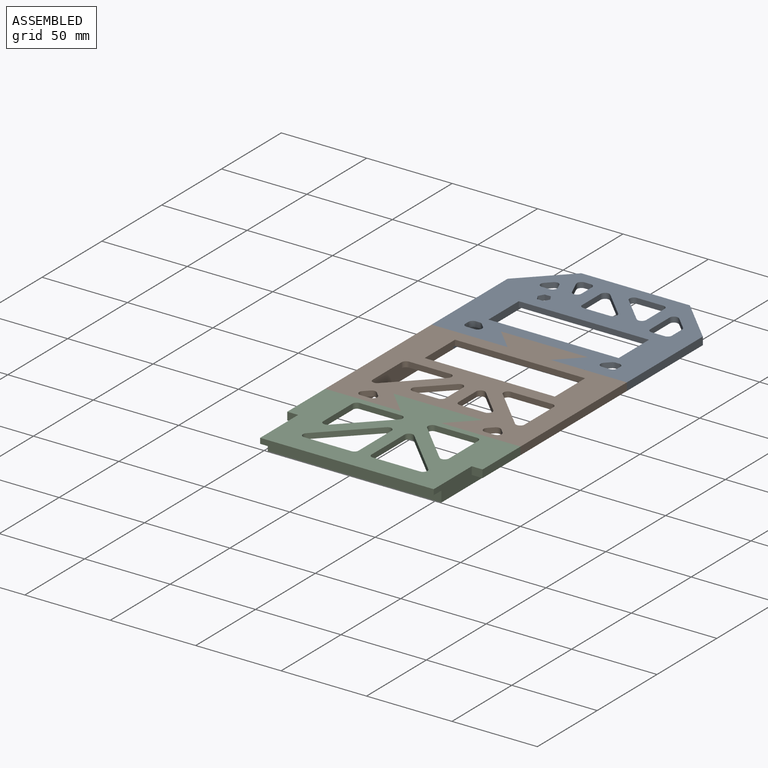
[diagram: assembled view]
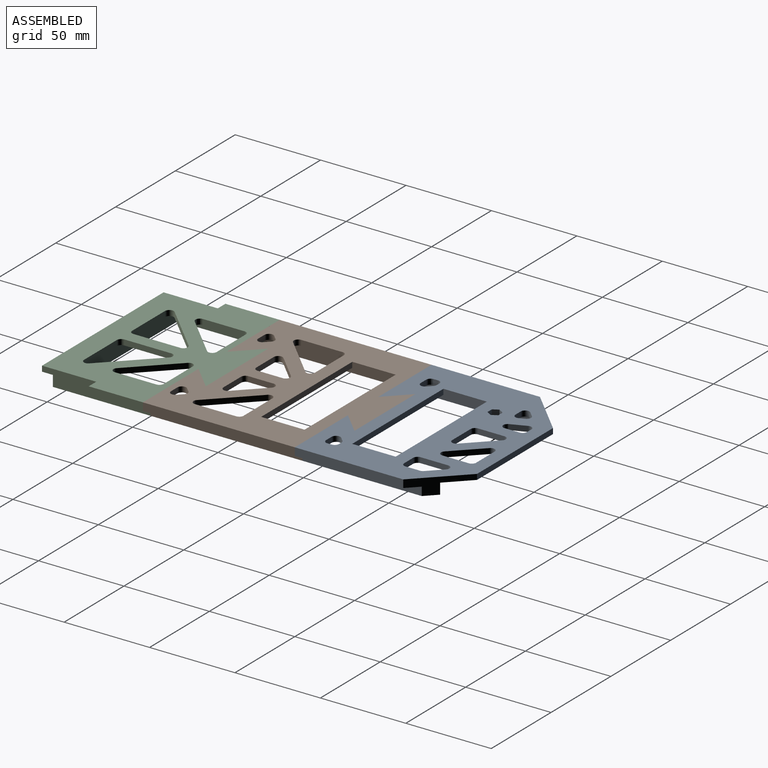
[diagram: assembled view, second angle]
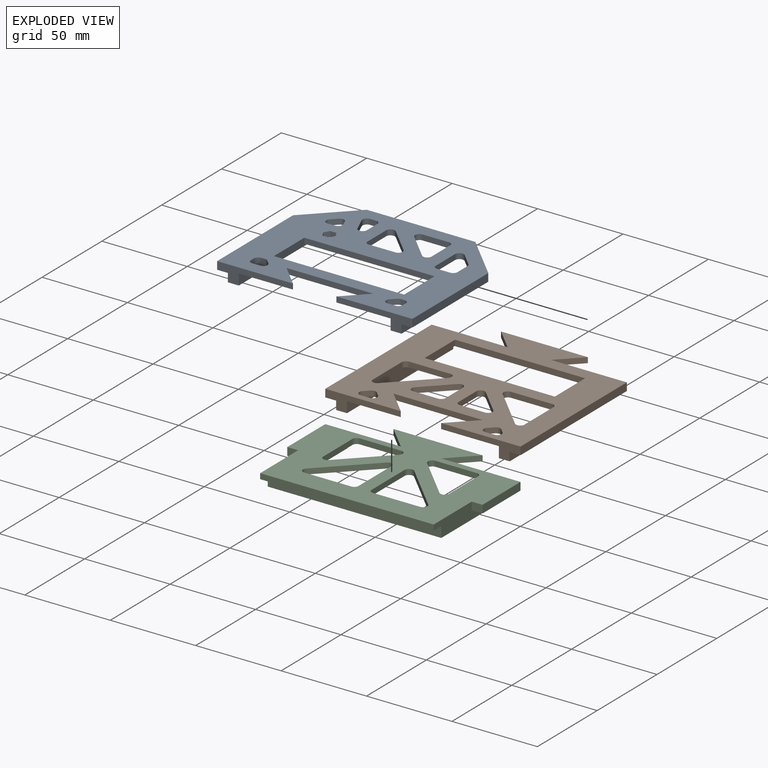
[diagram: exploded view]
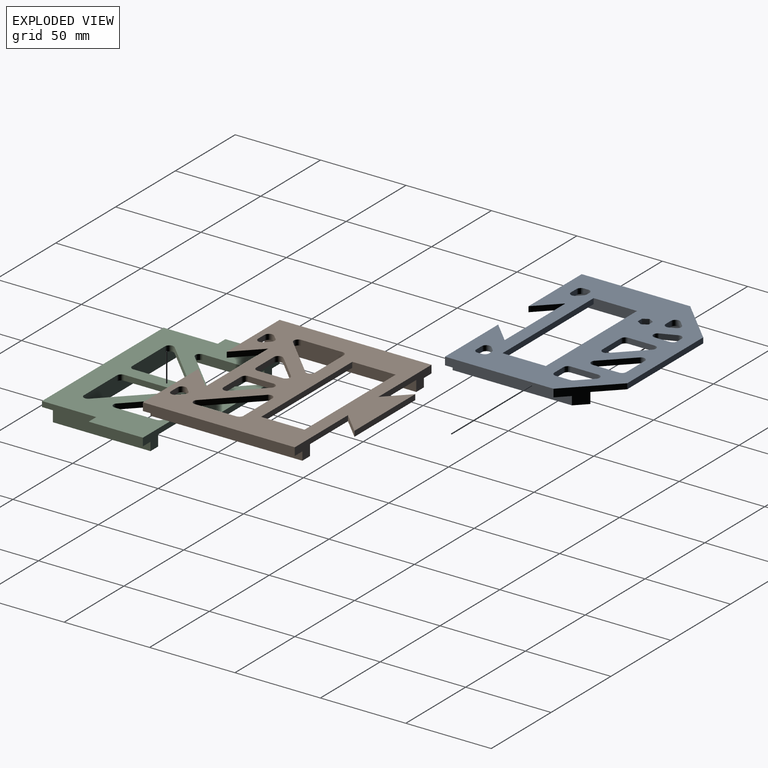
[diagram: exploded view, second angle]
ASSEMBLY  parts=3 mates=5
PART A: 75 faces, bbox 114.3x88.9x9.5 mm
  f0: plane 114.3x88.9mm, normal (0,0,1), area 6016.6mm2, adj f2,f5,f6,f10,f12,f13,f14,f15
  f1: plane 88.9x88.9mm, normal (0,0,-1), area 4242.4mm2, adj f5,f6,f12,f13,f14,f15,f16,f17
  f2: plane 63.5x4.57mm, normal (1,0,0), area 290.3mm2, adj f0,f9,f15,f18
  f3: plane 69.85x4.95mm, normal (-1,0,0), area 346mm2, adj f8,f11,f16,f19
  f4: plane 69.85x4.95mm, normal (1,0,0), area 346mm2, adj f7,f9,f15,f18
  f5: plane 76.2x9.53mm, normal (1,0,0), area 491.9mm2, adj f0,f1,f8,f16,f19,f71,f74
  f6: plane 76.2x9.53mm, normal (-1,0,0), area 518.9mm2, adj f0,f1,f7,f15,f18,f64,f65,f68
  f7: plane 76.2x6.35mm, normal (0,0,-1), area 463.7mm2, adj f4,f6,f15,f18
  f8: plane 76.2x6.35mm, normal (0,0,-1), area 463.7mm2, adj f3,f5,f16,f19
  f9: plane 69.85x6.35mm, normal (0,0,-1), area 423.4mm2, adj f2,f4,f15,f18
  f10: plane 63.5x4.57mm, normal (-1,0,0), area 290.3mm2, adj f0,f11,f16,f19
  f11: plane 69.85x6.35mm, normal (0,0,-1), area 423.4mm2, adj f3,f10,f16,f19
  f12: plane 12.7x12.7mm, normal (-0.71,0.71,0), area 57mm2, adj f0,f1,f13,f15
  f13: plane 50.8x3.18mm, normal (0,-1,0), area 161.3mm2, adj f0,f1,f12,f14
  f14: plane 12.7x12.7mm, normal (0.71,0.71,0), area 57mm2, adj f0,f1,f13,f16
  f15: plane 44.45x9.53mm, normal (0,-1,0), area 190.3mm2, adj f0,f1,f2,f4,f6,f7,f9,f12
  f16: plane 44.45x9.53mm, normal (0,-1,0), area 190.3mm2, adj f0,f1,f3,f5,f8,f10,f11,f14
  f17: plane 63.5x3.18mm, normal (0,1,0), area 201.6mm2, adj f0,f1,f18,f19
  f18: plane 25.4x25.4mm, normal (0.71,0.71,0), area 183.6mm2, adj f0,f1,f2,f4,f6,f7,f9,f17
  f19: plane 25.4x25.4mm, normal (-0.71,0.71,0), area 183.6mm2, adj f0,f1,f3,f5,f8,f10,f11,f17
  f20: plane 4.68x3.18mm, normal (0,1,0), area 14.9mm2, adj f0,f1,f73,f74
  f21: plane 3.18x2.54mm, normal (-0.71,-0.71,0), area 11.4mm2, adj f0,f1,f72,f73
  f22: plane 3.18x2.14mm, normal (0,-1,0), area 6.8mm2, adj f0,f1,f71,f72
  f23: plane 8.82x3.65mm, normal (0.92,0.38,0), area 30.3mm2, adj f0,f1,f54,f56
  f24: plane 8.82x3.18mm, normal (-1,0,0), area 28mm2, adj f0,f1,f55,f56
  f25: plane 3.65x3.18mm, normal (0,-1,0), area 11.6mm2, adj f0,f1,f54,f55
  f26: plane 3.18x3.14mm, normal (-0.92,-0.38,0), area 10.8mm2, adj f0,f1,f52,f53
  f27: plane 4.45x3.18mm, normal (0,1,0), area 14.1mm2, adj f0,f1,f51,f53
  f28: plane 3.18x3.14mm, normal (0.71,-0.71,0), area 14.1mm2, adj f0,f1,f51,f52
  f29: plane 3.67x3.18mm, normal (0,-1,0), area 11.6mm2, adj f0,f1,f30,f34
  f30: plane 3.18x3.18mm, normal (0.87,-0.5,0), area 11.6mm2, adj f0,f1,f29,f31
  f31: plane 3.18x3.18mm, normal (0.87,0.5,0), area 11.6mm2, adj f0,f1,f30,f32
  f32: plane 3.67x3.18mm, normal (0,1,0), area 11.6mm2, adj f0,f1,f31,f33
  f33: plane 3.18x3.18mm, normal (-0.87,0.5,0), area 11.6mm2, adj f0,f1,f32,f34
  f34: plane 3.18x3.18mm, normal (-0.87,-0.5,0), area 11.6mm2, adj f0,f1,f29,f33
  f35: plane 76.2x3.18mm, normal (0,-1,0), area 241.9mm2, adj f0,f1,f36,f38
  f36: plane 25.4x3.18mm, normal (1,0,0), area 80.6mm2, adj f0,f1,f35,f37
  f37: plane 76.2x3.18mm, normal (0,1,0), area 241.9mm2, adj f0,f1,f36,f38
  f38: plane 25.4x3.18mm, normal (-1,0,0), area 80.6mm2, adj f0,f1,f35,f37
  f39: plane 15.46x15.46mm, normal (0.71,0.71,0), area 69.4mm2, adj f0,f1,f60,f62
  f40: plane 15.46x3.18mm, normal (-1,0,0), area 49.1mm2, adj f0,f1,f61,f62
  f41: plane 15.46x3.18mm, normal (0,-1,0), area 49.1mm2, adj f0,f1,f60,f61
  f42: plane 15.46x3.18mm, normal (0,1,0), area 49.1mm2, adj f0,f1,f57,f59
  f43: plane 15.46x15.46mm, normal (-0.71,-0.71,0), area 69.4mm2, adj f0,f1,f58,f59
  f44: plane 15.46x3.18mm, normal (1,0,0), area 49.1mm2, adj f0,f1,f57,f58
  f45: plane 16.11x3.18mm, normal (1,0,0), area 51.2mm2, adj f0,f1,f63,f66
  f46: plane 7.62x3.18mm, normal (0,1,0), area 24.2mm2, adj f0,f1,f65,f66
  f47: plane 7.62x7.62mm, normal (-0.71,-0.71,0), area 34.2mm2, adj f0,f1,f63,f64
  f48: plane 3.18x2.54mm, normal (0.71,-0.71,0), area 11.4mm2, adj f0,f1,f67,f70
  f49: plane 4.68x3.18mm, normal (0,1,0), area 14.9mm2, adj f0,f1,f67,f68
  f50: plane 3.18x2.14mm, normal (0,-1,0), area 6.8mm2, adj f0,f1,f69,f70
  f51: cylinder r=2.54mm len=4.34mm, axis (0,0,-1), area 19mm2, adj f0,f1,f27,f28
  f52: cylinder r=2.54mm len=4.14mm, axis (0,0,-1), area 15.8mm2, adj f0,f1,f26,f28
  f53: cylinder r=2.54mm len=3.51mm, axis (0,0,-1), area 15.8mm2, adj f0,f1,f26,f27
  f54: cylinder r=2.54mm len=3.51mm, axis (0,0,-1), area 15.8mm2, adj f0,f1,f23,f25
  f55: cylinder r=2.54mm len=3.18mm, axis (0,0,-1), area 12.7mm2, adj f0,f1,f24,f25
  f56: cylinder r=2.54mm len=4.89mm, axis (0,0,-1), area 22.2mm2, adj f0,f1,f23,f24
  f57: cylinder r=2.54mm len=3.18mm, axis (0,0,-1), area 12.7mm2, adj f0,f1,f42,f44
  f58: cylinder r=2.54mm len=4.34mm, axis (0,0,-1), area 19mm2, adj f0,f1,f43,f44
  f59: cylinder r=2.54mm len=4.34mm, axis (0,0,-1), area 19mm2, adj f0,f1,f42,f43
  f60: cylinder r=2.54mm len=4.34mm, axis (0,0,-1), area 19mm2, adj f0,f1,f39,f41
  f61: cylinder r=2.54mm len=3.18mm, axis (0,0,-1), area 12.7mm2, adj f0,f1,f40,f41
  f62: cylinder r=2.54mm len=4.34mm, axis (0,0,-1), area 19mm2, adj f0,f1,f39,f40
  f63: cylinder r=2.54mm len=4.34mm, axis (0,0,-1), area 19mm2, adj f0,f1,f45,f47
  f64: cylinder r=2.54mm len=3.18mm, axis (0,0,-1), area 6.3mm2, adj f0,f1,f6,f47
  f65: cylinder r=2.54mm len=3.18mm, axis (0,0,-1), area 12.7mm2, adj f0,f1,f6,f46
  f66: cylinder r=2.54mm len=3.18mm, axis (0,0,-1), area 12.7mm2, adj f0,f1,f45,f46
  f67: cylinder r=2.54mm len=4.34mm, axis (0,0,-1), area 19mm2, adj f0,f1,f48,f49
  f68: cylinder r=2.54mm len=3.18mm, axis (0,0,-1), area 12.7mm2, adj f0,f1,f6,f49
  f69: cylinder r=2.54mm len=3.18mm, axis (0,0,-1), area 12.7mm2, adj f0,f1,f6,f50
  f70: cylinder r=2.54mm len=3.18mm, axis (0,0,-1), area 6.3mm2, adj f0,f1,f48,f50
  f71: cylinder r=2.54mm len=3.18mm, axis (0,0,1), area 12.7mm2, adj f0,f1,f5,f22
  f72: cylinder r=2.54mm len=3.18mm, axis (0,0,-1), area 6.3mm2, adj f0,f1,f21,f22
  f73: cylinder r=2.54mm len=4.34mm, axis (0,0,-1), area 19mm2, adj f0,f1,f20,f21
  f74: cylinder r=2.54mm len=3.18mm, axis (0,0,1), area 12.7mm2, adj f0,f1,f5,f20
PART B: 60 faces, bbox 114.3x101.6x9.5 mm
  f0: plane 88.9x6.35mm, normal (0,0,-1), area 564.5mm2, adj f4,f7,f15,f20
  f1: plane 114.3x101.6mm, normal (0,0,1), area 6489.4mm2, adj f3,f4,f5,f9,f12,f13,f14,f15
  f2: plane 101.6x88.9mm, normal (0,0,-1), area 4231.3mm2, adj f3,f4,f12,f13,f14,f15,f16,f17
  f3: plane 88.9x9.53mm, normal (1,0,0), area 641.3mm2, adj f1,f2,f8,f16,f21,f57,f58
  f4: plane 88.9x9.53mm, normal (-1,0,0), area 641.3mm2, adj f0,f1,f2,f15,f20,f45,f47
  f5: plane 88.9x4.57mm, normal (-1,0,0), area 406.5mm2, adj f1,f11,f16,f21
  f6: plane 88.9x4.95mm, normal (-1,0,0), area 440.3mm2, adj f8,f11,f16,f21
  f7: plane 88.9x4.95mm, normal (1,0,0), area 440.3mm2, adj f0,f10,f15,f20
  f8: plane 88.9x6.35mm, normal (0,0,-1), area 564.5mm2, adj f3,f6,f16,f21
  f9: plane 88.9x4.57mm, normal (1,0,0), area 406.5mm2, adj f1,f10,f15,f20
  f10: plane 88.9x6.35mm, normal (0,0,-1), area 564.5mm2, adj f7,f9,f15,f20
  f11: plane 88.9x6.35mm, normal (0,0,-1), area 564.5mm2, adj f5,f6,f16,f21
  f12: plane 12.7x12.7mm, normal (-0.71,-0.71,0), area 57mm2, adj f1,f2,f13,f16
  f13: plane 50.8x3.18mm, normal (0,1,0), area 161.3mm2, adj f1,f2,f12,f14
  f14: plane 12.7x12.7mm, normal (0.71,-0.71,0), area 57mm2, adj f1,f2,f13,f15
  f15: plane 44.45x9.53mm, normal (0,1,0), area 190.3mm2, adj f0,f1,f2,f4,f7,f9,f10,f14
  f16: plane 44.45x9.53mm, normal (0,1,0), area 190.3mm2, adj f1,f2,f3,f5,f6,f8,f11,f12
  f17: plane 14.25x14.25mm, normal (-0.71,0.71,0), area 64mm2, adj f1,f2,f18,f20
  f18: plane 52.17x3.18mm, normal (0,-1,0), area 165.6mm2, adj f1,f2,f17,f19
  f19: plane 14.25x14.25mm, normal (0.71,0.71,0), area 64mm2, adj f1,f2,f18,f21
  f20: plane 46.45x9.53mm, normal (0,-1,0), area 196.7mm2, adj f0,f1,f2,f4,f7,f9,f10,f17
  f21: plane 44.19x9.53mm, normal (0,-1,0), area 189.5mm2, adj f1,f2,f3,f5,f6,f8,f11,f19
  f22: plane 3.18x2.73mm, normal (-0.71,-0.71,0), area 12.3mm2, adj f1,f2,f54,f55
  f23: plane 3.18x2.73mm, normal (0.71,-0.71,0), area 12.3mm2, adj f1,f2,f54,f56
  f24: plane 5.47x3.18mm, normal (0,1,0), area 17.4mm2, adj f1,f2,f55,f56
  f25: plane 3.18x2.73mm, normal (0.71,-0.71,0), area 12.3mm2, adj f1,f2,f42,f43
  f26: plane 5.47x3.18mm, normal (0,1,0), area 17.4mm2, adj f1,f2,f42,f44
  f27: plane 3.18x2.73mm, normal (-0.71,-0.71,0), area 12.3mm2, adj f1,f2,f43,f44
  f28: plane 14.73x3.18mm, normal (0,1,0), area 46.8mm2, adj f1,f2,f48,f50
  f29: plane 14.73x14.73mm, normal (-0.71,-0.71,0), area 66.1mm2, adj f1,f2,f49,f50
  f30: plane 14.73x3.18mm, normal (1,0,0), area 46.8mm2, adj f1,f2,f48,f49
  f31: plane 14.73x14.73mm, normal (0.71,-0.71,0), area 66.1mm2, adj f1,f2,f51,f53
  f32: plane 14.73x3.18mm, normal (0,1,0), area 46.8mm2, adj f1,f2,f52,f53
  f33: plane 14.73x3.18mm, normal (-1,0,0), area 46.8mm2, adj f1,f2,f51,f52
  f34: plane 24.17x3.18mm, normal (0,-1,0), area 76.8mm2, adj f1,f2,f57,f59
  f35: plane 24.17x24.17mm, normal (-0.71,0.71,0), area 108.5mm2, adj f1,f2,f58,f59
  f36: plane 24.17x3.18mm, normal (0,-1,0), area 76.8mm2, adj f1,f2,f46,f47
  f37: plane 24.17x24.17mm, normal (0.71,0.71,0), area 108.5mm2, adj f1,f2,f45,f46
  f38: plane 25.4x3.18mm, normal (-1,0,0), area 80.6mm2, adj f1,f2,f39,f41
  f39: plane 76.2x3.18mm, normal (0,-1,0), area 241.9mm2, adj f1,f2,f38,f40
  f40: plane 25.4x3.18mm, normal (1,0,0), area 80.6mm2, adj f1,f2,f39,f41
  f41: plane 76.2x3.18mm, normal (0,1,0), area 241.9mm2, adj f1,f2,f38,f40
  f42: cylinder r=2.54mm len=4.34mm, axis (0,0,-1), area 19mm2, adj f1,f2,f25,f26
  f43: cylinder r=2.54mm len=3.59mm, axis (0,0,-1), area 12.7mm2, adj f1,f2,f25,f27
  f44: cylinder r=2.54mm len=4.34mm, axis (0,0,-1), area 19mm2, adj f1,f2,f26,f27
  f45: cylinder r=2.54mm len=4.34mm, axis (0,0,1), area 19mm2, adj f1,f2,f4,f37
  f46: cylinder r=2.54mm len=4.34mm, axis (0,0,-1), area 19mm2, adj f1,f2,f36,f37
  f47: cylinder r=2.54mm len=3.18mm, axis (0,0,1), area 12.7mm2, adj f1,f2,f4,f36
  f48: cylinder r=2.54mm len=3.18mm, axis (0,0,-1), area 12.7mm2, adj f1,f2,f28,f30
  f49: cylinder r=2.54mm len=4.34mm, axis (0,0,-1), area 19mm2, adj f1,f2,f29,f30
  f50: cylinder r=2.54mm len=4.34mm, axis (0,0,-1), area 19mm2, adj f1,f2,f28,f29
  f51: cylinder r=2.54mm len=4.34mm, axis (0,0,-1), area 19mm2, adj f1,f2,f31,f33
  f52: cylinder r=2.54mm len=3.18mm, axis (0,0,-1), area 12.7mm2, adj f1,f2,f32,f33
  f53: cylinder r=2.54mm len=4.34mm, axis (0,0,-1), area 19mm2, adj f1,f2,f31,f32
  f54: cylinder r=2.54mm len=3.59mm, axis (0,0,-1), area 12.7mm2, adj f1,f2,f22,f23
  f55: cylinder r=2.54mm len=4.34mm, axis (0,0,-1), area 19mm2, adj f1,f2,f22,f24
  f56: cylinder r=2.54mm len=4.34mm, axis (0,0,-1), area 19mm2, adj f1,f2,f23,f24
  f57: cylinder r=2.54mm len=3.18mm, axis (0,0,-1), area 12.7mm2, adj f1,f2,f3,f34
  f58: cylinder r=2.54mm len=4.34mm, axis (0,0,-1), area 19mm2, adj f1,f2,f3,f35
  f59: cylinder r=2.54mm len=4.34mm, axis (0,0,-1), area 19mm2, adj f1,f2,f34,f35
PART C: 44 faces, bbox 114.3x77.8x9.5 mm
  f0: plane 88.9x65.05mm, normal (0,0,-1), area 2724.2mm2, adj f3,f10,f11,f17,f18,f19,f20,f21
  f1: plane 114.3x77.75mm, normal (0,0,1), area 5062.9mm2, adj f2,f6,f8,f11,f12,f13,f14,f15
  f2: plane 63.5x9.53mm, normal (1,0,0), area 419.4mm2, adj f1,f4,f5,f7,f8,f9,f12,f20
  f3: plane 50.8x6.35mm, normal (-1,0,0), area 322.6mm2, adj f0,f4,f11,f20
  f4: plane 101.6x57.15mm, normal (0,0,-1), area 1290.3mm2, adj f2,f3,f6,f9,f10,f11,f20,f21
  f5: plane 31.75x6.35mm, normal (0,0,-1), area 201.6mm2, adj f2,f12,f13,f20
  f6: plane 63.5x9.53mm, normal (-1,0,0), area 419.4mm2, adj f1,f4,f7,f8,f9,f15,f16,f21
  f7: plane 101.6x6.35mm, normal (0,0,-1), area 645.2mm2, adj f2,f6,f8,f9
  f8: plane 101.6x3.18mm, normal (0,-1,0), area 322.6mm2, adj f1,f2,f6,f7
  f9: plane 101.6x6.35mm, normal (0,-1,0), area 645.2mm2, adj f2,f4,f6,f7
  f10: plane 50.8x6.35mm, normal (1,0,0), area 322.6mm2, adj f0,f4,f11,f21
  f11: plane 88.9x9.53mm, normal (0,1,0), area 739.4mm2, adj f0,f1,f3,f4,f10,f35,f37,f39
  f12: plane 6.35x4.57mm, normal (0,-1,0), area 29mm2, adj f1,f2,f5,f13
  f13: plane 31.75x4.57mm, normal (1,0,0), area 145.2mm2, adj f1,f5,f12,f20
  f14: plane 31.75x4.57mm, normal (-1,0,0), area 145.2mm2, adj f1,f15,f16,f21
  f15: plane 6.35x4.57mm, normal (0,-1,0), area 29mm2, adj f1,f6,f14,f16
  f16: plane 31.75x6.35mm, normal (0,0,-1), area 201.6mm2, adj f6,f14,f15,f21
  f17: plane 14.25x14.25mm, normal (-0.71,-0.71,0), area 64mm2, adj f0,f1,f18,f21
  f18: plane 52.17x3.18mm, normal (0,1,0), area 165.6mm2, adj f0,f1,f17,f19
  f19: plane 14.25x14.25mm, normal (0.71,-0.71,0), area 64mm2, adj f0,f1,f18,f20
  f20: plane 46.45x9.53mm, normal (0,1,0), area 196.7mm2, adj f0,f1,f2,f3,f4,f5,f13,f19
  f21: plane 44.19x9.53mm, normal (0,1,0), area 189.5mm2, adj f0,f1,f4,f6,f10,f14,f16,f17
  f22: plane 24.35x3.18mm, normal (-1,0,0), area 77.3mm2, adj f0,f1,f41,f43
  f23: plane 24.35x3.18mm, normal (0,-1,0), area 77.3mm2, adj f0,f1,f42,f43
  f24: plane 24.35x24.35mm, normal (0.71,0.71,0), area 109.3mm2, adj f0,f1,f41,f42
  f25: plane 24.35x3.18mm, normal (0,-1,0), area 77.3mm2, adj f0,f1,f32,f34
  f26: plane 24.35x3.18mm, normal (1,0,0), area 77.3mm2, adj f0,f1,f33,f34
  f27: plane 24.35x24.35mm, normal (-0.71,0.71,0), area 109.3mm2, adj f0,f1,f32,f33
  f28: plane 27.54x3.18mm, normal (-1,0,0), area 87.4mm2, adj f0,f1,f36,f37
  f29: plane 27.54x27.54mm, normal (0.71,-0.71,0), area 123.7mm2, adj f0,f1,f35,f36
  f30: plane 27.54x27.54mm, normal (-0.71,-0.71,0), area 123.7mm2, adj f0,f1,f38,f40
  f31: plane 27.54x3.18mm, normal (1,0,0), area 87.4mm2, adj f0,f1,f38,f39
  f32: cylinder r=2.54mm len=4.34mm, axis (0,0,-1), area 19mm2, adj f0,f1,f25,f27
  f33: cylinder r=2.54mm len=4.34mm, axis (0,0,-1), area 19mm2, adj f0,f1,f26,f27
  f34: cylinder r=2.54mm len=3.18mm, axis (0,0,-1), area 12.7mm2, adj f0,f1,f25,f26
  f35: cylinder r=2.54mm len=4.34mm, axis (0,0,-1), area 19mm2, adj f0,f1,f11,f29
  f36: cylinder r=2.54mm len=4.34mm, axis (0,0,-1), area 19mm2, adj f0,f1,f28,f29
  f37: cylinder r=2.54mm len=3.18mm, axis (0,0,-1), area 12.7mm2, adj f0,f1,f11,f28
  f38: cylinder r=2.54mm len=4.34mm, axis (0,0,-1), area 19mm2, adj f0,f1,f30,f31
  f39: cylinder r=2.54mm len=3.18mm, axis (0,0,1), area 12.7mm2, adj f0,f1,f11,f31
  f40: cylinder r=2.54mm len=4.34mm, axis (0,0,1), area 19mm2, adj f0,f1,f11,f30
  f41: cylinder r=2.54mm len=4.34mm, axis (0,0,-1), area 19mm2, adj f0,f1,f22,f24
  f42: cylinder r=2.54mm len=4.34mm, axis (0,0,-1), area 19mm2, adj f0,f1,f23,f24
  f43: cylinder r=2.54mm len=3.18mm, axis (0,0,-1), area 12.7mm2, adj f0,f1,f22,f23
PLACE A t=(47.11,20.28,96.01)mm
PLACE B t=(47.11,20.28,96.01)mm
PLACE C t=(47.11,20.28,96.01)mm
MATE planar C.f1 <-> B.f1  axis (0,0,1) through (-10.04,-71.8,99.19)mm
MATE planar A.f2 <-> B.f9  axis (1,0,0) through (104.26,64.73,96.9)mm
MATE planar B.f9 <-> C.f13  axis (1,0,0) through (104.26,-11.47,96.9)mm
MATE planar B.f15 <-> A.f15  axis (0,1,0) through (85.61,32.98,96.49)mm
MATE planar C.f20 <-> B.f21  axis (0,1,0) through (91.56,-55.92,96.01)mm
